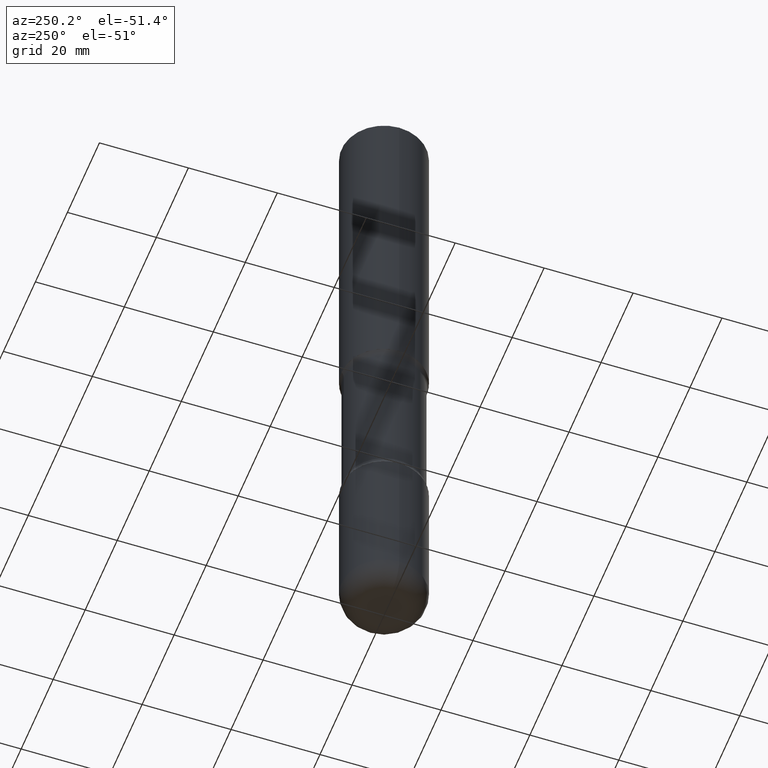
[diagram: clean part render]
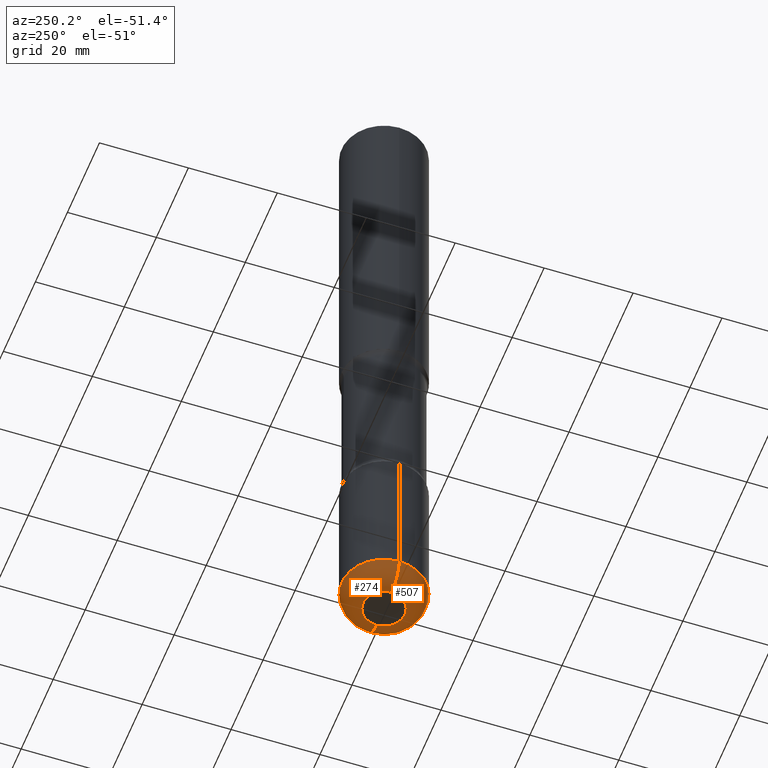
[diagram: same view with one multi-face feature highlighted, each face labeled with its STEP entity id]
A machine part, auxiliary view. The highlighted faces form ONE feature: a constant-radius fillet chain: 2 tangent blend faces with common blend radius 4.826 mm. The faces share edges in the B-rep.
Their STEP definitions:
[1] entity #274 (Torus):
#22 = DIRECTION ( 'NONE',  ( 1.000000000000000000, -6.982962677686263555E-15, 0.000000000000000000 ) ) ;
#37 = CARTESIAN_POINT ( 'NONE',  ( 1.420817376393564022E-28, -2.028550657867867295E-14, -5.809999999999998721 ) ) ;
#56 = EDGE_LOOP ( 'NONE', ( #107, #514, #94, #266 ) ) ;
#64 = DIRECTION ( 'NONE',  ( -6.982962677686266711E-15, -1.000000000000000000, 3.491481338843145583E-15 ) ) ;
#80 = CIRCLE ( 'NONE', #434, 0.1899999999999999467 ) ;
#85 = DIRECTION ( 'NONE',  ( 1.000000000000000000, -6.982962677686263555E-15, 4.883557194083111780E-29 ) ) ;
#94 = ORIENTED_EDGE ( 'NONE', *, *, #297, .F. ) ;
#95 = EDGE_CURVE ( 'NONE', #150, #225, #80, .T. ) ;
#107 = ORIENTED_EDGE ( 'NONE', *, *, #215, .T. ) ;
#125 = DIRECTION ( 'NONE',  ( -1.000000000000000000, 7.105427357600999492E-15, 0.000000000000000000 ) ) ;
#150 = VERTEX_POINT ( 'NONE', #463 ) ;
#158 = AXIS2_PLACEMENT_3D ( 'NONE', #439, #425, #265 ) ;
#160 = CARTESIAN_POINT ( 'NONE',  ( -0.1850000000000005529, -1.897100251752248407E-14, -5.809999999999998721 ) ) ;
#177 = CARTESIAN_POINT ( 'NONE',  ( -0.3750000000000004996, -1.762097131957829410E-14, -5.809999999999998721 ) ) ;
#182 = DIRECTION ( 'NONE',  ( 1.000000000000000000, -6.982962677686263555E-15, 0.000000000000000000 ) ) ;
#204 = DIRECTION ( 'NONE',  ( 7.105427357601001859E-15, 1.000000000000000000, -3.491481338843145583E-15 ) ) ;
#210 = CARTESIAN_POINT ( 'NONE',  ( 0.1850000000000005529, -2.157735467405063292E-14, -5.809999999999998721 ) ) ;
#215 = EDGE_CURVE ( 'NONE', #490, #150, #240, .T. ) ;
#225 = VERTEX_POINT ( 'NONE', #177 ) ;
#240 = CIRCLE ( 'NONE', #158, 0.1850000000000005806 ) ;
#261 = CIRCLE ( 'NONE', #289, 0.3750000000000004996 ) ;
#265 = DIRECTION ( 'NONE',  ( 1.000000000000000000, -6.982962677686264344E-15, 0.000000000000000000 ) ) ;
#266 = ORIENTED_EDGE ( 'NONE', *, *, #360, .F. ) ;
#270 = CARTESIAN_POINT ( 'NONE',  ( 0.3750000000000004996, -2.290411758281102297E-14, -5.809999999999998721 ) ) ;
#272 = AXIS2_PLACEMENT_3D ( 'NONE', #522, #549, #85 ) ;
#274 = ADVANCED_FACE ( 'NONE', ( #303 ), #443, .T. ) ;
#289 = AXIS2_PLACEMENT_3D ( 'NONE', #37, #554, #182 ) ;
#297 = EDGE_CURVE ( 'NONE', #444, #225, #261, .T. ) ;
#303 = FACE_OUTER_BOUND ( 'NONE', #56, .T. ) ;
#314 = CARTESIAN_POINT ( 'NONE',  ( 0.1850000000000005806, -2.224073612843082952E-14, -5.999999999999998224 ) ) ;
#347 = CIRCLE ( 'NONE', #366, 0.1899999999999999467 ) ;
#360 = EDGE_CURVE ( 'NONE', #490, #444, #347, .T. ) ;
#366 = AXIS2_PLACEMENT_3D ( 'NONE', #210, #64, #22 ) ;
#425 = DIRECTION ( 'NONE',  ( -2.445468806185136597E-29, 3.491481338843145583E-15, 1.000000000000000000 ) ) ;
#434 = AXIS2_PLACEMENT_3D ( 'NONE', #160, #204, #125 ) ;
#439 = CARTESIAN_POINT ( 'NONE',  ( 1.467281283711081510E-28, -2.094888803305886640E-14, -5.999999999999998224 ) ) ;
#443 = TOROIDAL_SURFACE ( 'NONE', #272, 0.1850000000000005529, 0.1899999999999999190 ) ;
#444 = VERTEX_POINT ( 'NONE', #270 ) ;
#463 = CARTESIAN_POINT ( 'NONE',  ( -0.1850000000000005806, -1.862767764574048423E-14, -5.999999999999998224 ) ) ;
#490 = VERTEX_POINT ( 'NONE', #314 ) ;
#514 = ORIENTED_EDGE ( 'NONE', *, *, #95, .T. ) ;
#522 = CARTESIAN_POINT ( 'NONE',  ( 1.420817376393564022E-28, -2.028550657867867295E-14, -5.809999999999998721 ) ) ;
#549 = DIRECTION ( 'NONE',  ( -2.445468806185136597E-29, 3.491481338843145583E-15, 1.000000000000000000 ) ) ;
#554 = DIRECTION ( 'NONE',  ( -2.445468806185136597E-29, 3.491481338843145583E-15, 1.000000000000000000 ) ) ;
[2] entity #507 (Torus):
#22 = DIRECTION ( 'NONE',  ( 1.000000000000000000, -6.982962677686263555E-15, 0.000000000000000000 ) ) ;
#27 = CARTESIAN_POINT ( 'NONE',  ( 1.420817376393564022E-28, -2.028550657867867295E-14, -5.809999999999998721 ) ) ;
#36 = EDGE_LOOP ( 'NONE', ( #427, #392, #254, #527 ) ) ;
#59 = AXIS2_PLACEMENT_3D ( 'NONE', #207, #502, #292 ) ;
#64 = DIRECTION ( 'NONE',  ( -6.982962677686266711E-15, -1.000000000000000000, 3.491481338843145583E-15 ) ) ;
#80 = CIRCLE ( 'NONE', #434, 0.1899999999999999467 ) ;
#82 = CARTESIAN_POINT ( 'NONE',  ( 1.467281283711081510E-28, -2.094888803305886640E-14, -5.999999999999998224 ) ) ;
#95 = EDGE_CURVE ( 'NONE', #150, #225, #80, .T. ) ;
#113 = EDGE_CURVE ( 'NONE', #225, #444, #451, .T. ) ;
#125 = DIRECTION ( 'NONE',  ( -1.000000000000000000, 7.105427357600999492E-15, 0.000000000000000000 ) ) ;
#150 = VERTEX_POINT ( 'NONE', #463 ) ;
#160 = CARTESIAN_POINT ( 'NONE',  ( -0.1850000000000005529, -1.897100251752248407E-14, -5.809999999999998721 ) ) ;
#177 = CARTESIAN_POINT ( 'NONE',  ( -0.3750000000000004996, -1.762097131957829410E-14, -5.809999999999998721 ) ) ;
#204 = DIRECTION ( 'NONE',  ( 7.105427357601001859E-15, 1.000000000000000000, -3.491481338843145583E-15 ) ) ;
#207 = CARTESIAN_POINT ( 'NONE',  ( 1.420817376393564022E-28, -2.028550657867867295E-14, -5.809999999999998721 ) ) ;
#210 = CARTESIAN_POINT ( 'NONE',  ( 0.1850000000000005529, -2.157735467405063292E-14, -5.809999999999998721 ) ) ;
#225 = VERTEX_POINT ( 'NONE', #177 ) ;
#254 = ORIENTED_EDGE ( 'NONE', *, *, #360, .T. ) ;
#270 = CARTESIAN_POINT ( 'NONE',  ( 0.3750000000000004996, -2.290411758281102297E-14, -5.809999999999998721 ) ) ;
#292 = DIRECTION ( 'NONE',  ( 1.000000000000000000, -6.982962677686263555E-15, 0.000000000000000000 ) ) ;
#294 = DIRECTION ( 'NONE',  ( 1.000000000000000000, -6.982962677686263555E-15, 4.883557194083111780E-29 ) ) ;
#300 = FACE_OUTER_BOUND ( 'NONE', #36, .T. ) ;
#314 = CARTESIAN_POINT ( 'NONE',  ( 0.1850000000000005806, -2.224073612843082952E-14, -5.999999999999998224 ) ) ;
#328 = TOROIDAL_SURFACE ( 'NONE', #398, 0.1850000000000005529, 0.1899999999999999190 ) ;
#339 = AXIS2_PLACEMENT_3D ( 'NONE', #82, #469, #362 ) ;
#347 = CIRCLE ( 'NONE', #366, 0.1899999999999999467 ) ;
#359 = CIRCLE ( 'NONE', #339, 0.1850000000000005806 ) ;
#360 = EDGE_CURVE ( 'NONE', #490, #444, #347, .T. ) ;
#362 = DIRECTION ( 'NONE',  ( 1.000000000000000000, -6.982962677686264344E-15, 0.000000000000000000 ) ) ;
#366 = AXIS2_PLACEMENT_3D ( 'NONE', #210, #64, #22 ) ;
#392 = ORIENTED_EDGE ( 'NONE', *, *, #543, .T. ) ;
#398 = AXIS2_PLACEMENT_3D ( 'NONE', #27, #524, #294 ) ;
#427 = ORIENTED_EDGE ( 'NONE', *, *, #95, .F. ) ;
#434 = AXIS2_PLACEMENT_3D ( 'NONE', #160, #204, #125 ) ;
#444 = VERTEX_POINT ( 'NONE', #270 ) ;
#451 = CIRCLE ( 'NONE', #59, 0.3750000000000004996 ) ;
#463 = CARTESIAN_POINT ( 'NONE',  ( -0.1850000000000005806, -1.862767764574048423E-14, -5.999999999999998224 ) ) ;
#469 = DIRECTION ( 'NONE',  ( -2.445468806185136597E-29, 3.491481338843145583E-15, 1.000000000000000000 ) ) ;
#490 = VERTEX_POINT ( 'NONE', #314 ) ;
#502 = DIRECTION ( 'NONE',  ( -2.445468806185136597E-29, 3.491481338843145583E-15, 1.000000000000000000 ) ) ;
#507 = ADVANCED_FACE ( 'NONE', ( #300 ), #328, .T. ) ;
#524 = DIRECTION ( 'NONE',  ( -2.445468806185136597E-29, 3.491481338843145583E-15, 1.000000000000000000 ) ) ;
#527 = ORIENTED_EDGE ( 'NONE', *, *, #113, .F. ) ;
#543 = EDGE_CURVE ( 'NONE', #150, #490, #359, .T. ) ;